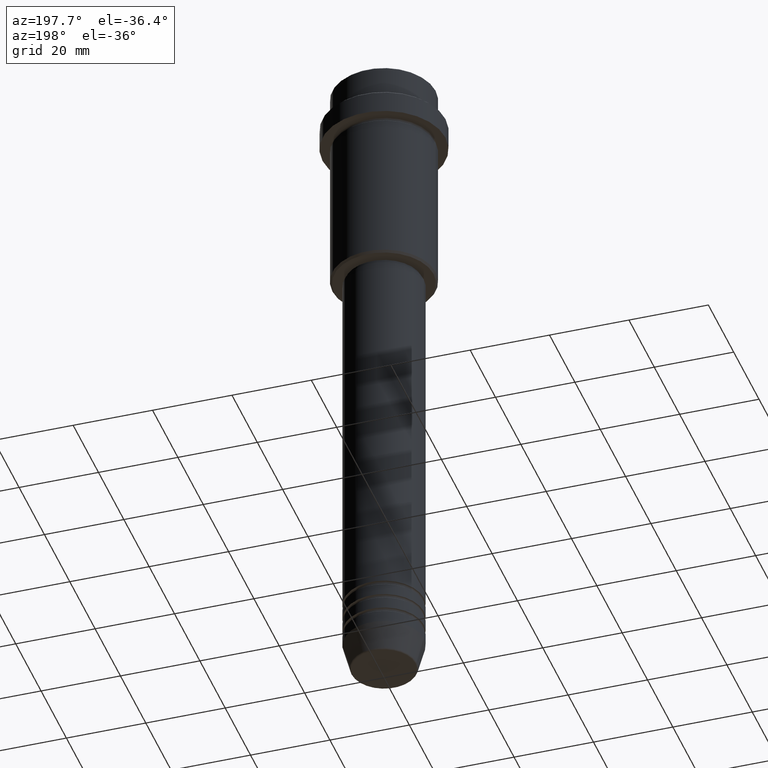
[diagram: clean part render]
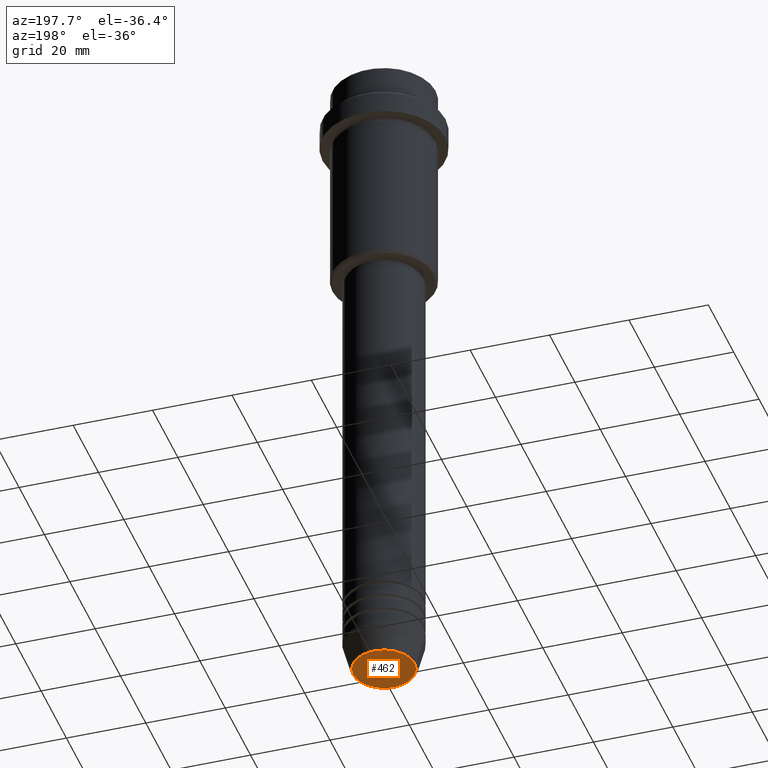
[diagram: same view with one face highlighted and labeled with its STEP entity id]
A machine part, auxiliary view. The second image highlights one B-rep face of the part: STEP entity #462.
In plain terms, the highlighted planar face has unit normal (0, -0, 1).
Its self-contained STEP definition (entity closure, byte-faithful):
#27 = PLANE ( 'NONE',  #548 ) ;
#88 = EDGE_LOOP ( 'NONE', ( #677, #1086 ) ) ;
#117 = CARTESIAN_POINT ( 'NONE',  ( 0.000000000000000000, 0.000000000000000000, -169.9999999999999716 ) ) ;
#185 = CARTESIAN_POINT ( 'NONE',  ( 0.000000000000000000, 0.000000000000000000, -169.9999999999999716 ) ) ;
#221 = CARTESIAN_POINT ( 'NONE',  ( 0.000000000000000000, 0.000000000000000000, -169.9999999999999716 ) ) ;
#328 = DIRECTION ( 'NONE',  ( 0.000000000000000000, 0.000000000000000000, -1.000000000000000000 ) ) ;
#432 = EDGE_CURVE ( 'NONE', #1150, #985, #913, .T. ) ;
#455 = AXIS2_PLACEMENT_3D ( 'NONE', #185, #1292, #1075 ) ;
#462 = ADVANCED_FACE ( 'NONE', ( #549 ), #27, .F. ) ;
#548 = AXIS2_PLACEMENT_3D ( 'NONE', #117, #1011, #1219 ) ;
#549 = FACE_OUTER_BOUND ( 'NONE', #88, .T. ) ;
#604 = CARTESIAN_POINT ( 'NONE',  ( -7.740692158992658278, 9.775343368540041107E-16, -169.9999999999999716 ) ) ;
#677 = ORIENTED_EDGE ( 'NONE', *, *, #1379, .T. ) ;
#762 = DIRECTION ( 'NONE',  ( 1.000000000000000000, 0.000000000000000000, 0.000000000000000000 ) ) ;
#913 = CIRCLE ( 'NONE', #1162, 7.740692158992658278 ) ;
#985 = VERTEX_POINT ( 'NONE', #1133 ) ;
#1011 = DIRECTION ( 'NONE',  ( 0.000000000000000000, -0.000000000000000000, 1.000000000000000000 ) ) ;
#1075 = DIRECTION ( 'NONE',  ( 1.000000000000000000, 0.000000000000000000, 0.000000000000000000 ) ) ;
#1078 = CIRCLE ( 'NONE', #455, 7.740692158992658278 ) ;
#1086 = ORIENTED_EDGE ( 'NONE', *, *, #432, .T. ) ;
#1133 = CARTESIAN_POINT ( 'NONE',  ( 7.740692158992658278, 0.000000000000000000, -169.9999999999999716 ) ) ;
#1150 = VERTEX_POINT ( 'NONE', #604 ) ;
#1162 = AXIS2_PLACEMENT_3D ( 'NONE', #221, #328, #762 ) ;
#1219 = DIRECTION ( 'NONE',  ( 1.000000000000000000, 0.000000000000000000, 0.000000000000000000 ) ) ;
#1292 = DIRECTION ( 'NONE',  ( 0.000000000000000000, 0.000000000000000000, -1.000000000000000000 ) ) ;
#1379 = EDGE_CURVE ( 'NONE', #985, #1150, #1078, .T. ) ;